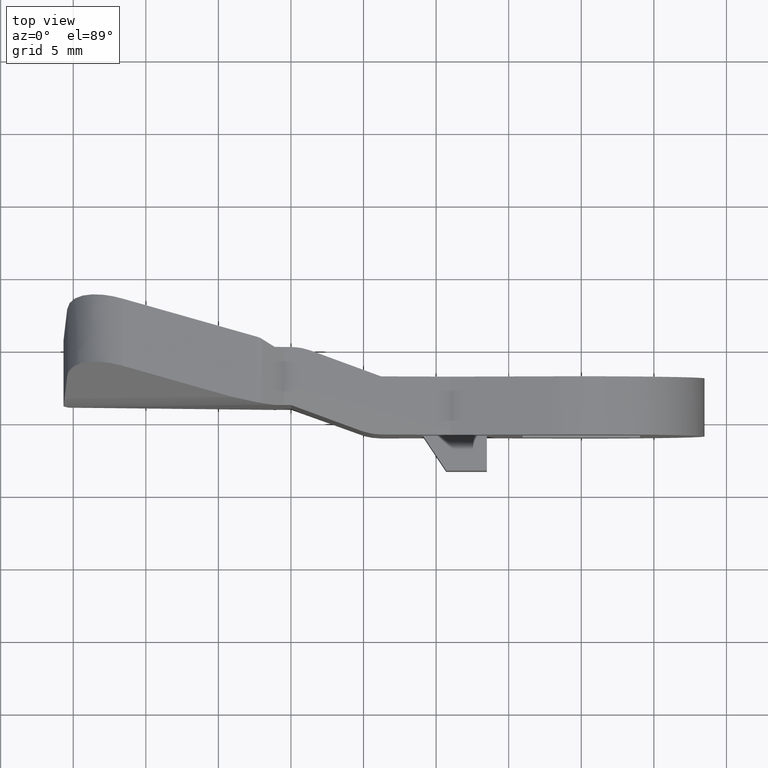
[diagram: clean part render]
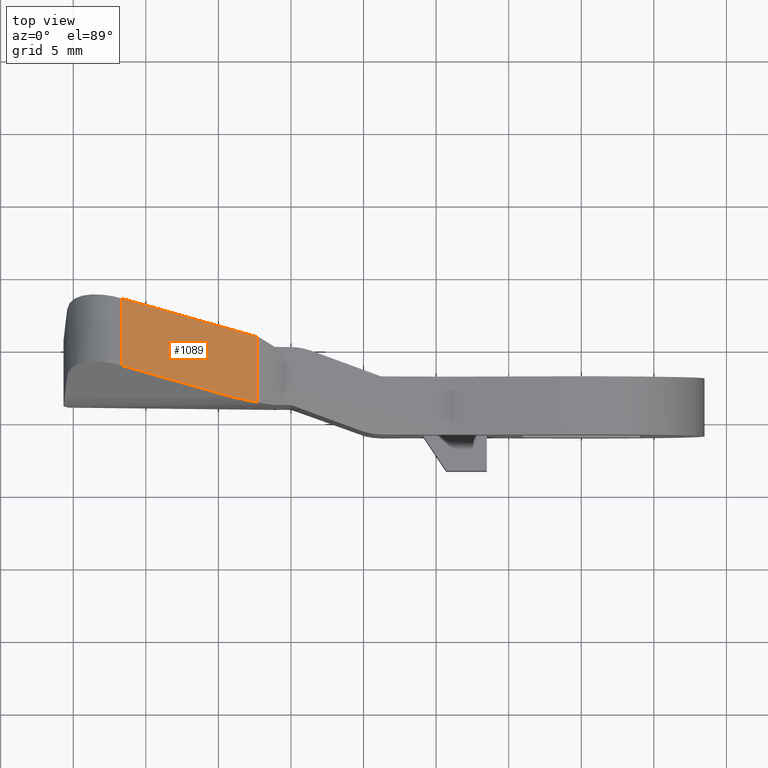
[diagram: same view with one face highlighted and labeled with its STEP entity id]
A machine part, top view. The second image highlights one B-rep face of the part: STEP entity #1089.
In plain terms, the highlighted face is a freeform B-spline surface patch.
Its self-contained STEP definition (entity closure, byte-faithful):
#117=CARTESIAN_POINT('',(-22.319539963078149,0.684391381523998,10.534270565629260));
#118=VERTEX_POINT('',#117);
#134=CARTESIAN_POINT('',(-22.319539963078149,-3.823251987303410,10.534270565629280));
#135=VERTEX_POINT('',#134);
#136=CARTESIAN_POINT('',(-22.319539963078149,-3.823251987303410,10.534270565629280));
#137=CARTESIAN_POINT('',(-22.319539963078149,0.684391381523998,10.534270565629260));
#138=QUASI_UNIFORM_CURVE('',1,(#136,#137),.UNSPECIFIED.,.F.,.U.);
#139=EDGE_CURVE('',#135,#118,#138,.T.);
#436=CARTESIAN_POINT('',(-24.030205217989849,-3.457099397804625,10.440620578942140));
#437=VERTEX_POINT('',#436);
#438=CARTESIAN_POINT('',(-24.030205217989849,-3.457099397804626,10.440620578942140));
#439=CARTESIAN_POINT('',(-23.217890057165086,-3.688194885698644,10.485090590698432));
#440=CARTESIAN_POINT('',(-22.319539963078149,-3.823251987303411,10.534270565629271));
#448=(BOUNDED_CURVE()B_SPLINE_CURVE(2,(#438,#439,#440),.UNSPECIFIED.,.F.,.U.)CURVE()GEOMETRIC_REPRESENTATION_ITEM()QUASI_UNIFORM_CURVE()RATIONAL_B_SPLINE_CURVE((1.0,0.993468821219440,1.0))REPRESENTATION_ITEM(''));
#449=EDGE_CURVE('',#437,#135,#448,.T.);
#850=CARTESIAN_POINT('',(-31.639469198980152,3.335817450836445,10.024053124571640));
#851=VERTEX_POINT('',#850);
#872=CARTESIAN_POINT('',(-31.639469198980152,-1.292340376914348,10.024053124571640));
#873=VERTEX_POINT('',#872);
#887=CARTESIAN_POINT('',(-31.639469198980152,3.335817450836445,10.024053124571640));
#888=CARTESIAN_POINT('',(-31.639469198980152,-1.292340376914348,10.024053124571640));
#889=QUASI_UNIFORM_CURVE('',1,(#887,#888),.UNSPECIFIED.,.F.,.U.);
#890=EDGE_CURVE('',#851,#873,#889,.T.);
#1069=CARTESIAN_POINT('',(-21.854009603297499,-4.180847466285606,10.559755921031650));
#1070=CARTESIAN_POINT('',(-32.104999892067440,-4.180847466285606,9.998567750922476));
#1071=CARTESIAN_POINT('',(-21.854009603297499,3.693412609783297,10.559755921031650));
#1072=CARTESIAN_POINT('',(-32.104999892067440,3.693412609783297,9.998567750922476));
#1073=B_SPLINE_SURFACE_WITH_KNOTS('',1,1,((#1069,#1071),(#1070,#1072)),.UNSPECIFIED.,.F.,.F.,.U.,(2,2),(2,2),(0.0,10.266339857160681),(0.0,7.874260076068902),.UNSPECIFIED.);
#1074=ORIENTED_EDGE('',*,*,#449,.T.);
#1075=ORIENTED_EDGE('',*,*,#139,.T.);
#1076=CARTESIAN_POINT('',(-22.319539963078149,0.684391381523998,10.534270565629260));
#1077=CARTESIAN_POINT('',(-31.639469198980152,3.335817450836445,10.024053124571640));
#1078=QUASI_UNIFORM_CURVE('',1,(#1076,#1077),.UNSPECIFIED.,.F.,.U.);
#1079=EDGE_CURVE('',#118,#851,#1078,.T.);
#1080=ORIENTED_EDGE('',*,*,#1079,.T.);
#1081=ORIENTED_EDGE('',*,*,#890,.T.);
#1082=CARTESIAN_POINT('',(-24.030205217989849,-3.457099397804625,10.440620578942140));
#1083=CARTESIAN_POINT('',(-31.639469198980152,-1.292340376914348,10.024053124571640));
#1084=QUASI_UNIFORM_CURVE('',1,(#1082,#1083),.UNSPECIFIED.,.F.,.U.);
#1085=EDGE_CURVE('',#437,#873,#1084,.T.);
#1086=ORIENTED_EDGE('',*,*,#1085,.F.);
#1087=EDGE_LOOP('',(#1074,#1075,#1080,#1081,#1086));
#1088=FACE_OUTER_BOUND('',#1087,.T.);
#1089=ADVANCED_FACE('',(#1088),#1073,.F.);